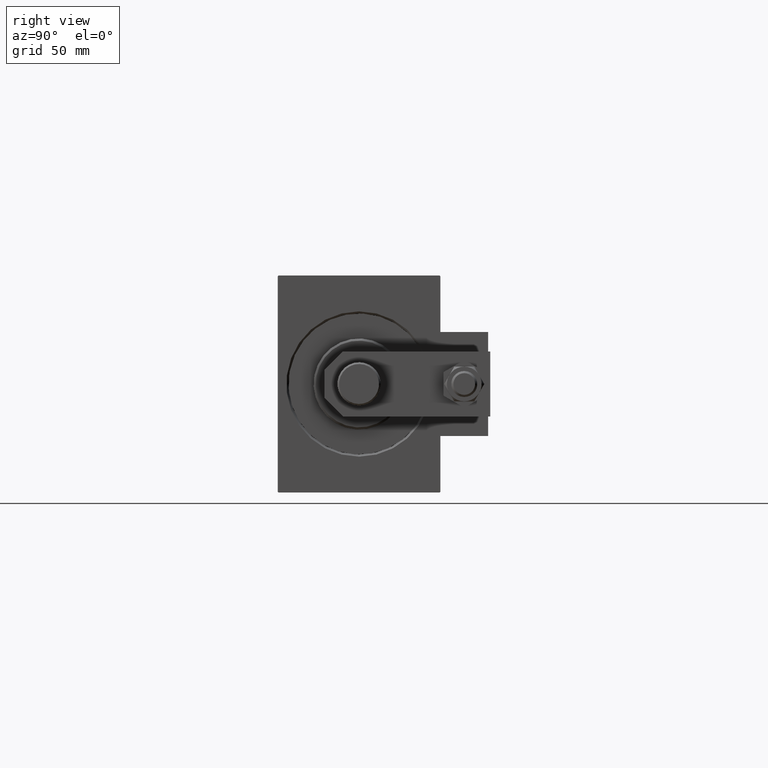
[diagram: clean part render]
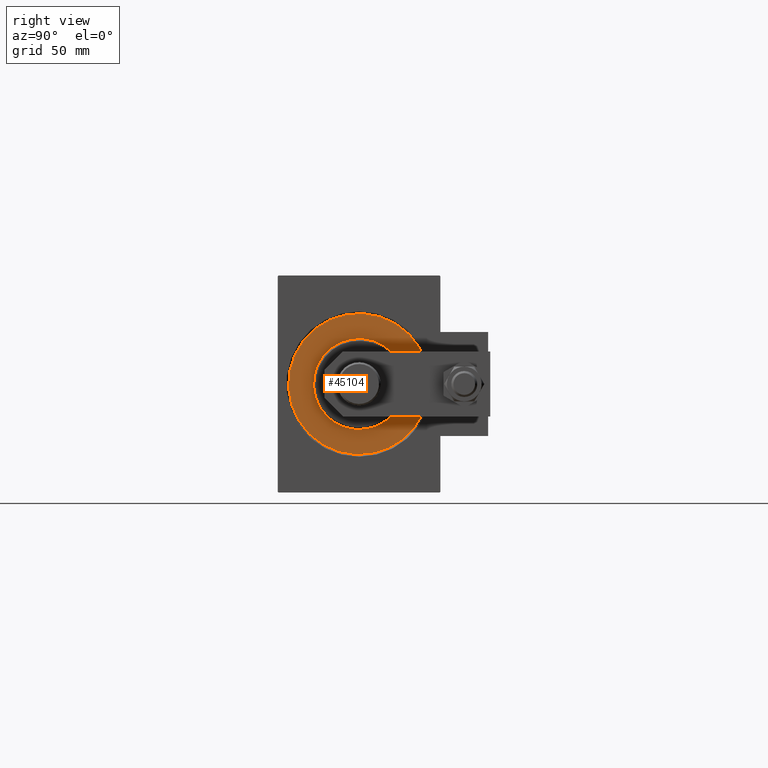
[diagram: same view with one face highlighted and labeled with its STEP entity id]
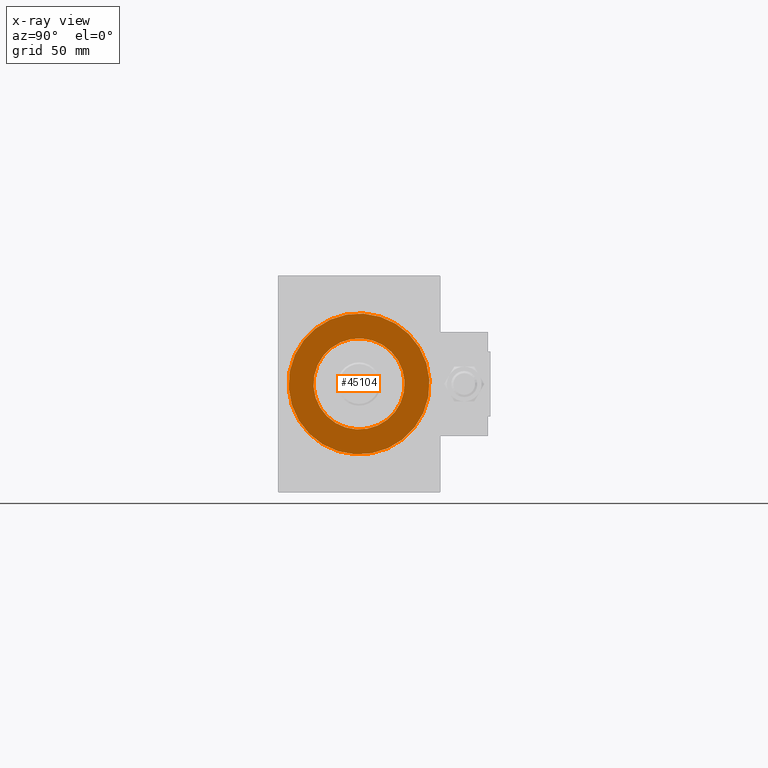
[diagram: x-ray of the same camera — body ghosted, the highlighted face saturated]
A machine part, right view. The second image highlights one B-rep face of the part: STEP entity #45104.
The next image is the same camera in x-ray: the body ghosted, the highlighted face saturated — about 0% of this face is hidden behind the body in this view.
In plain terms, the highlighted planar face has unit normal (-1, 0, 0).
Its self-contained STEP definition (entity closure, byte-faithful):
#137 = EDGE_CURVE ( 'NONE', #39790, #11832, #23496, .T. ) ;
#2079 = AXIS2_PLACEMENT_3D ( 'NONE', #34987, #34493, #7902 ) ;
#6074 = EDGE_CURVE ( 'NONE', #22934, #10407, #18074, .T. ) ;
#6465 = DIRECTION ( 'NONE',  ( -1.000000000000000000, 0.000000000000000000, 0.000000000000000000 ) ) ;
#7902 = DIRECTION ( 'NONE',  ( 0.000000000000000000, 0.000000000000000000, 1.000000000000000000 ) ) ;
#8829 = CIRCLE ( 'NONE', #16105, 21.00000000000000000 ) ;
#9980 = FACE_OUTER_BOUND ( 'NONE', #43361, .T. ) ;
#10407 = VERTEX_POINT ( 'NONE', #31740 ) ;
#11014 = DIRECTION ( 'NONE',  ( 0.000000000000000000, 0.000000000000000000, 1.000000000000000000 ) ) ;
#11832 = VERTEX_POINT ( 'NONE', #39247 ) ;
#13525 = EDGE_LOOP ( 'NONE', ( #14842, #37995 ) ) ;
#14842 = ORIENTED_EDGE ( 'NONE', *, *, #21544, .F. ) ;
#16105 = AXIS2_PLACEMENT_3D ( 'NONE', #31681, #42797, #20538 ) ;
#17141 = ORIENTED_EDGE ( 'NONE', *, *, #6074, .F. ) ;
#18074 = CIRCLE ( 'NONE', #46330, 32.50000000000000000 ) ;
#20538 = DIRECTION ( 'NONE',  ( 0.000000000000000000, 0.000000000000000000, -1.000000000000000000 ) ) ;
#21544 = EDGE_CURVE ( 'NONE', #11832, #39790, #8829, .T. ) ;
#22161 = AXIS2_PLACEMENT_3D ( 'NONE', #25961, #6465, #11014 ) ;
#22934 = VERTEX_POINT ( 'NONE', #39456 ) ;
#23005 = CARTESIAN_POINT ( 'NONE',  ( 0.000000000000000000, 0.000000000000000000, 0.000000000000000000 ) ) ;
#23447 = CARTESIAN_POINT ( 'NONE',  ( 0.000000000000000000, 2.571758278209441661E-15, -21.00000000000000000 ) ) ;
#23496 = CIRCLE ( 'NONE', #35620, 21.00000000000000000 ) ;
#25961 = CARTESIAN_POINT ( 'NONE',  ( 0.000000000000000000, 0.000000000000000000, 0.000000000000000000 ) ) ;
#26278 = CARTESIAN_POINT ( 'NONE',  ( 0.000000000000000000, 0.000000000000000000, 0.000000000000000000 ) ) ;
#27282 = DIRECTION ( 'NONE',  ( 0.000000000000000000, 0.000000000000000000, -1.000000000000000000 ) ) ;
#31276 = ORIENTED_EDGE ( 'NONE', *, *, #35428, .F. ) ;
#31681 = CARTESIAN_POINT ( 'NONE',  ( 0.000000000000000000, 0.000000000000000000, 0.000000000000000000 ) ) ;
#31740 = CARTESIAN_POINT ( 'NONE',  ( 0.000000000000000000, 3.980102097228898626E-15, 32.50000000000000000 ) ) ;
#34362 = DIRECTION ( 'NONE',  ( -1.000000000000000000, 0.000000000000000000, 0.000000000000000000 ) ) ;
#34493 = DIRECTION ( 'NONE',  ( -1.000000000000000000, 0.000000000000000000, 0.000000000000000000 ) ) ;
#34987 = CARTESIAN_POINT ( 'NONE',  ( 0.000000000000000000, 0.000000000000000000, 0.000000000000000000 ) ) ;
#35428 = EDGE_CURVE ( 'NONE', #10407, #22934, #43141, .T. ) ;
#35620 = AXIS2_PLACEMENT_3D ( 'NONE', #23005, #46502, #27282 ) ;
#37995 = ORIENTED_EDGE ( 'NONE', *, *, #137, .F. ) ;
#38046 = PLANE ( 'NONE',  #2079 ) ;
#39247 = CARTESIAN_POINT ( 'NONE',  ( 0.000000000000000000, 0.000000000000000000, 21.00000000000000000 ) ) ;
#39456 = CARTESIAN_POINT ( 'NONE',  ( 0.000000000000000000, 0.000000000000000000, -32.50000000000000000 ) ) ;
#39790 = VERTEX_POINT ( 'NONE', #23447 ) ;
#42797 = DIRECTION ( 'NONE',  ( 1.000000000000000000, -0.000000000000000000, 0.000000000000000000 ) ) ;
#43141 = CIRCLE ( 'NONE', #22161, 32.50000000000000000 ) ;
#43361 = EDGE_LOOP ( 'NONE', ( #17141, #31276 ) ) ;
#45104 = ADVANCED_FACE ( 'NONE', ( #48428, #9980 ), #38046, .F. ) ;
#46330 = AXIS2_PLACEMENT_3D ( 'NONE', #26278, #34362, #49795 ) ;
#46502 = DIRECTION ( 'NONE',  ( 1.000000000000000000, -0.000000000000000000, 0.000000000000000000 ) ) ;
#48428 = FACE_BOUND ( 'NONE', #13525, .T. ) ;
#49795 = DIRECTION ( 'NONE',  ( 0.000000000000000000, 0.000000000000000000, 1.000000000000000000 ) ) ;